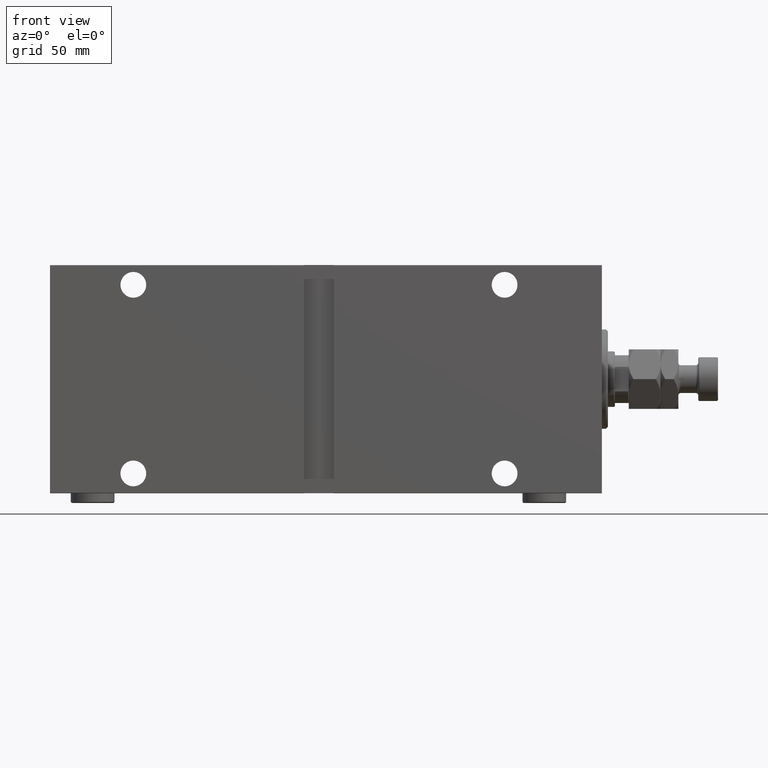
[diagram: clean part render]
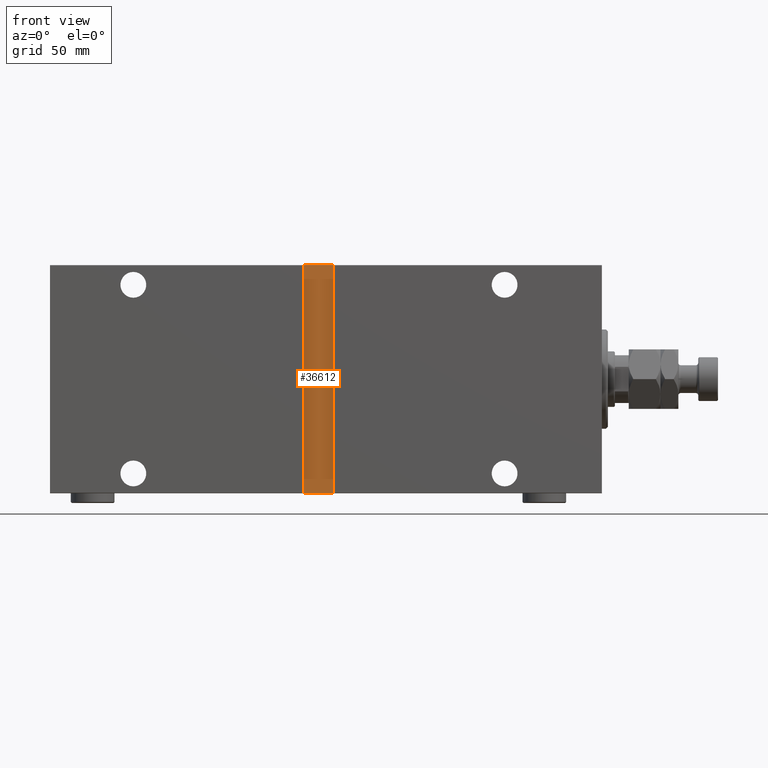
[diagram: same view with one face highlighted and labeled with its STEP entity id]
A machine part, front view. The second image highlights one B-rep face of the part: STEP entity #36612.
In plain terms, the highlighted planar face has unit normal (-0, 1, -0).
Its self-contained STEP definition (entity closure, byte-faithful):
#506 = ORIENTED_EDGE ( 'NONE', *, *, #20375, .T. ) ;
#1920 = DIRECTION ( 'NONE',  ( 0.000000000000000000, 1.206764157201257045E-16, -1.000000000000000000 ) ) ;
#2747 = CARTESIAN_POINT ( 'NONE',  ( 150.0000000000000284, 40.00000000000000711, 57.50000000000002132 ) ) ;
#3603 = VECTOR ( 'NONE', #42338, 1000.000000000000000 ) ;
#3775 = LINE ( 'NONE', #35225, #25396 ) ;
#6262 = LINE ( 'NONE', #31178, #22945 ) ;
#7076 = VERTEX_POINT ( 'NONE', #18911 ) ;
#8145 = EDGE_CURVE ( 'NONE', #15923, #41785, #6262, .T. ) ;
#12166 = CARTESIAN_POINT ( 'NONE',  ( -2.512082536157262892E-30, 40.00000000000001421, 4.799630170686818812E-15 ) ) ;
#14480 = LINE ( 'NONE', #18189, #20480 ) ;
#15618 = CARTESIAN_POINT ( 'NONE',  ( 135.0000000000000000, 40.00000000000000711, 57.50000000000001421 ) ) ;
#15923 = VERTEX_POINT ( 'NONE', #22638 ) ;
#18189 = CARTESIAN_POINT ( 'NONE',  ( 150.0000000000000284, 40.00000000000002132, -57.50000000000000711 ) ) ;
#18911 = CARTESIAN_POINT ( 'NONE',  ( 135.0000000000000000, 40.00000000000002132, -57.50000000000000711 ) ) ;
#20375 = EDGE_CURVE ( 'NONE', #41785, #7076, #14480, .T. ) ;
#20378 = VERTEX_POINT ( 'NONE', #15618 ) ;
#20480 = VECTOR ( 'NONE', #32406, 1000.000000000000000 ) ;
#22638 = CARTESIAN_POINT ( 'NONE',  ( 150.0000000000000284, 40.00000000000000711, 57.50000000000002132 ) ) ;
#22865 = FACE_OUTER_BOUND ( 'NONE', #24190, .T. ) ;
#22945 = VECTOR ( 'NONE', #38170, 1000.000000000000000 ) ;
#24190 = EDGE_LOOP ( 'NONE', ( #45604, #43782, #28295, #506 ) ) ;
#25396 = VECTOR ( 'NONE', #28450, 1000.000000000000000 ) ;
#27417 = LINE ( 'NONE', #2747, #3603 ) ;
#28295 = ORIENTED_EDGE ( 'NONE', *, *, #8145, .T. ) ;
#28450 = DIRECTION ( 'NONE',  ( 0.000000000000000000, -1.206764157201257045E-16, 1.000000000000000000 ) ) ;
#31178 = CARTESIAN_POINT ( 'NONE',  ( 150.0000000000000284, 40.00000000000002132, -57.50000000000000711 ) ) ;
#32406 = DIRECTION ( 'NONE',  ( -1.000000000000000000, 0.000000000000000000, 0.000000000000000000 ) ) ;
#32928 = EDGE_CURVE ( 'NONE', #20378, #15923, #27417, .T. ) ;
#33594 = DIRECTION ( 'NONE',  ( 5.582405635905027238E-32, -1.000000000000000000, -1.206764157201257045E-16 ) ) ;
#33815 = PLANE ( 'NONE',  #44611 ) ;
#35225 = CARTESIAN_POINT ( 'NONE',  ( 135.0000000000000000, 40.00000000000002132, -57.50000000000000711 ) ) ;
#36612 = ADVANCED_FACE ( 'NONE', ( #22865 ), #33815, .F. ) ;
#38170 = DIRECTION ( 'NONE',  ( -0.000000000000000000, 1.206764157201257045E-16, -1.000000000000000000 ) ) ;
#39343 = CARTESIAN_POINT ( 'NONE',  ( 150.0000000000000284, 40.00000000000003553, -57.50000000000000711 ) ) ;
#41785 = VERTEX_POINT ( 'NONE', #39343 ) ;
#42338 = DIRECTION ( 'NONE',  ( 1.000000000000000000, -0.000000000000000000, 4.625929269271481969E-16 ) ) ;
#43782 = ORIENTED_EDGE ( 'NONE', *, *, #32928, .T. ) ;
#44072 = EDGE_CURVE ( 'NONE', #7076, #20378, #3775, .T. ) ;
#44611 = AXIS2_PLACEMENT_3D ( 'NONE', #12166, #33594, #1920 ) ;
#45604 = ORIENTED_EDGE ( 'NONE', *, *, #44072, .T. ) ;